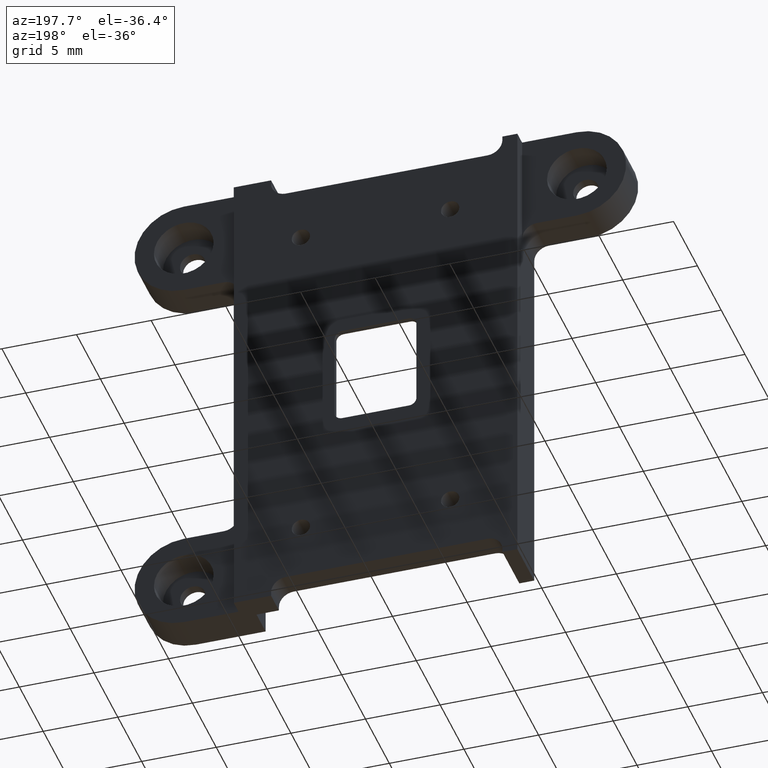
[diagram: clean part render]
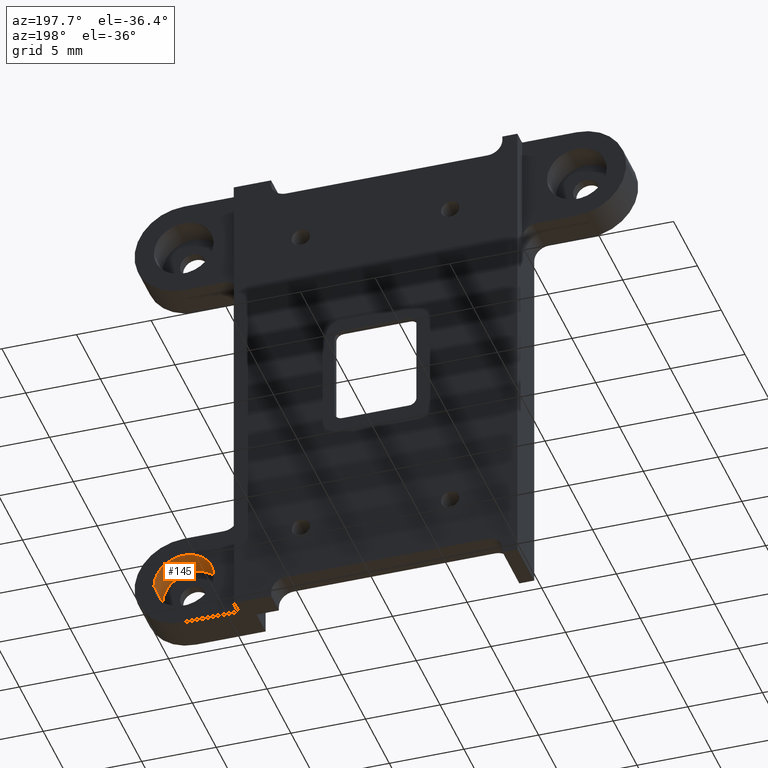
[diagram: same view with one face highlighted and labeled with its STEP entity id]
A machine part, auxiliary view. The second image highlights one B-rep face of the part: STEP entity #145.
In plain terms, the highlighted cylindrical surface (edge-blend (fillet) strip) has radius 2 mm, axis along (0, -1, 0).
Its self-contained STEP definition (entity closure, byte-faithful):
#74=CYLINDRICAL_SURFACE('',#2354,2.);
#145=ADVANCED_FACE('',(#256),#74,.F.);
#256=FACE_OUTER_BOUND('',#406,.F.);
#406=EDGE_LOOP('',(#809,#810,#811,#812));
#809=ORIENTED_EDGE('',*,*,#1819,.F.);
#810=ORIENTED_EDGE('',*,*,#1821,.F.);
#811=ORIENTED_EDGE('',*,*,#1820,.T.);
#812=ORIENTED_EDGE('',*,*,#1647,.T.);
#1378=LINE('',#3437,#1561);
#1379=LINE('',#3438,#1562);
#1561=VECTOR('',#2713,1.9);
#1562=VECTOR('',#2714,1.9);
#1647=EDGE_CURVE('',#2114,#2113,#1897,.T.);
#1819=EDGE_CURVE('',#2002,#2113,#1378,.T.);
#1820=EDGE_CURVE('',#2001,#2114,#1379,.T.);
#1821=EDGE_CURVE('',#2001,#2002,#1956,.T.);
#1897=CIRCLE('',#2212,2.);
#1956=CIRCLE('',#2271,2.);
#2001=VERTEX_POINT('',#3048);
#2002=VERTEX_POINT('',#3049);
#2113=VERTEX_POINT('',#3160);
#2114=VERTEX_POINT('',#3161);
#2212=AXIS2_PLACEMENT_3D('',#3265,#2482,#2483);
#2271=AXIS2_PLACEMENT_3D('',#3439,#2715,#2716);
#2354=AXIS2_PLACEMENT_3D('',#3555,#2914,#2915);
#2482=DIRECTION('',(0.,-1.,0.));
#2483=DIRECTION('',(1.,0.,0.));
#2713=DIRECTION('',(0.,1.,0.));
#2714=DIRECTION('',(0.,1.,0.));
#2715=DIRECTION('',(0.,-1.,0.));
#2716=DIRECTION('',(1.,0.,0.));
#2914=DIRECTION('',(0.,-1.,0.));
#2915=DIRECTION('',(1.,0.,0.));
#3048=CARTESIAN_POINT('',(15.1683717738187,-14.338,-13.1698595510255));
#3049=CARTESIAN_POINT('',(11.1683717738187,-14.338,-13.1698595510255));
#3160=CARTESIAN_POINT('',(11.1683717738187,-12.438,-13.1698595510255));
#3161=CARTESIAN_POINT('',(15.1683717738187,-12.438,-13.1698595510255));
#3265=CARTESIAN_POINT('',(13.1683717738187,-12.438,-13.1698595510255));
#3437=CARTESIAN_POINT('',(11.1683717738187,-14.338,-13.1698595510255));
#3438=CARTESIAN_POINT('',(15.1683717738187,-14.338,-13.1698595510255));
#3439=CARTESIAN_POINT('',(13.1683717738187,-14.338,-13.1698595510255));
#3555=CARTESIAN_POINT('',(13.1683717738187,-14.338,-13.1698595510255));